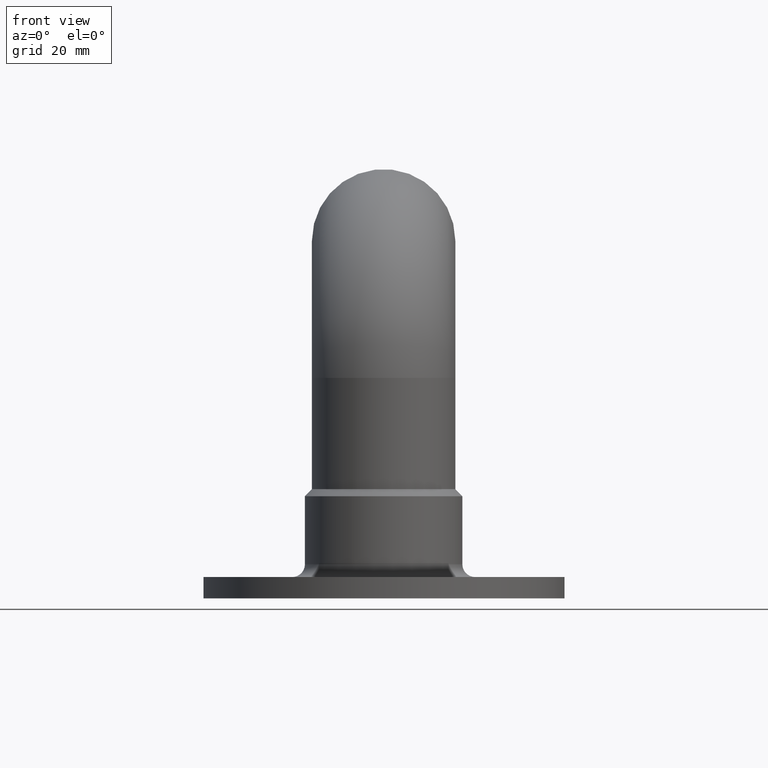
[diagram: clean part render]
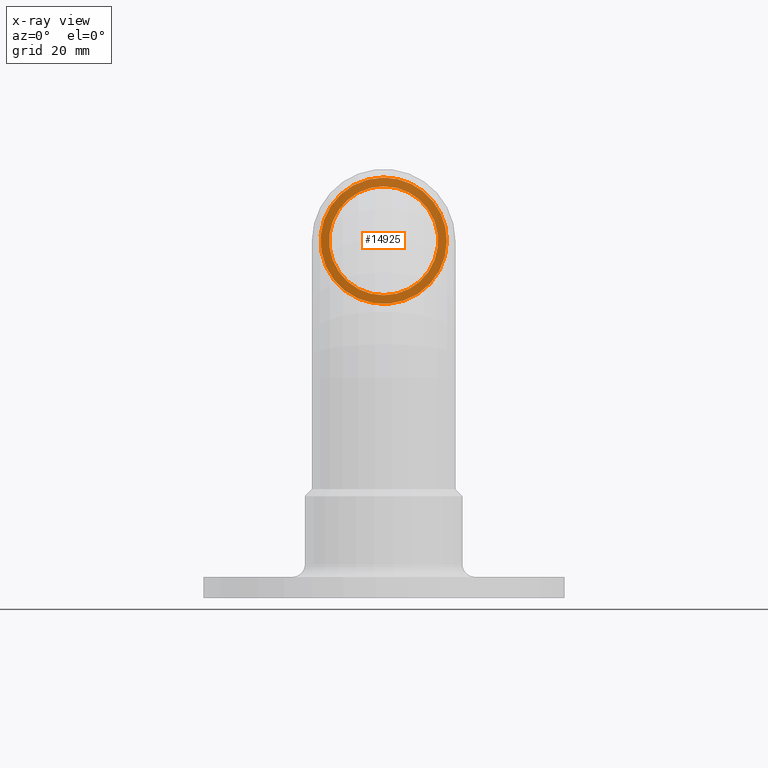
[diagram: x-ray — body ghosted, one internal face saturated and labeled with its STEP entity id]
A machine part, front view, then the same camera in x-ray: the body is ghosted and one INTERNAL B-rep face — a face not visible from any outside direction — is saturated and labeled: STEP entity #14925.
In plain terms, the highlighted planar face has unit normal (0, 1, 0).
Its self-contained STEP definition (entity closure, byte-faithful):
#915 = VERTEX_POINT ( 'NONE', #4059 ) ;
#984 = DIRECTION ( 'NONE',  ( 0.000000000000000000, -1.084202172485503842E-15, 1.000000000000000000 ) ) ;
#1498 = CARTESIAN_POINT ( 'NONE',  ( 0.000000000000000000, 41.99999999999976552, 98.85000000000000853 ) ) ;
#2927 = DIRECTION ( 'NONE',  ( 0.000000000000000000, -1.284980352575411319E-15, 1.000000000000000000 ) ) ;
#3036 = FACE_OUTER_BOUND ( 'NONE', #4992, .T. ) ;
#3039 = PLANE ( 'NONE',  #15241 ) ;
#4059 = CARTESIAN_POINT ( 'NONE',  ( 0.000000000000000000, 41.99999999999977263, 96.79999999999989768 ) ) ;
#4100 = CIRCLE ( 'NONE', #12957, 12.80000000000000604 ) ;
#4308 = CARTESIAN_POINT ( 'NONE',  ( 0.000000000000000000, 41.99999999999978684, 84.00000000000000000 ) ) ;
#4452 = VERTEX_POINT ( 'NONE', #1498 ) ;
#4992 = EDGE_LOOP ( 'NONE', ( #14174 ) ) ;
#5911 = EDGE_CURVE ( 'NONE', #4452, #4452, #7350, .T. ) ;
#6199 = DIRECTION ( 'NONE',  ( 0.000000000000000000, 1.000000000000000000, 1.284980352575411319E-15 ) ) ;
#6372 = FACE_BOUND ( 'NONE', #14004, .T. ) ;
#6443 = ORIENTED_EDGE ( 'NONE', *, *, #14647, .T. ) ;
#7350 = CIRCLE ( 'NONE', #16622, 14.85000000000000142 ) ;
#8354 = DIRECTION ( 'NONE',  ( 0.000000000000000000, -1.401796748264086348E-15, 1.000000000000000000 ) ) ;
#9625 = DIRECTION ( 'NONE',  ( 0.000000000000000000, 1.000000000000000000, 1.284980352575411319E-15 ) ) ;
#9708 = CARTESIAN_POINT ( 'NONE',  ( 0.000000000000000000, 41.99999999999978684, 83.99999999999990052 ) ) ;
#12636 = CARTESIAN_POINT ( 'NONE',  ( 0.000000000000000000, 41.99999999999978684, 83.99999999999990052 ) ) ;
#12957 = AXIS2_PLACEMENT_3D ( 'NONE', #12636, #6199, #984 ) ;
#14004 = EDGE_LOOP ( 'NONE', ( #6443 ) ) ;
#14174 = ORIENTED_EDGE ( 'NONE', *, *, #5911, .F. ) ;
#14647 = EDGE_CURVE ( 'NONE', #915, #915, #4100, .T. ) ;
#14697 = DIRECTION ( 'NONE',  ( 0.000000000000000000, 1.000000000000000000, 1.284980352575411319E-15 ) ) ;
#14925 = ADVANCED_FACE ( 'NONE', ( #6372, #3036 ), #3039, .F. ) ;
#15241 = AXIS2_PLACEMENT_3D ( 'NONE', #9708, #14697, #2927 ) ;
#16622 = AXIS2_PLACEMENT_3D ( 'NONE', #4308, #9625, #8354 ) ;